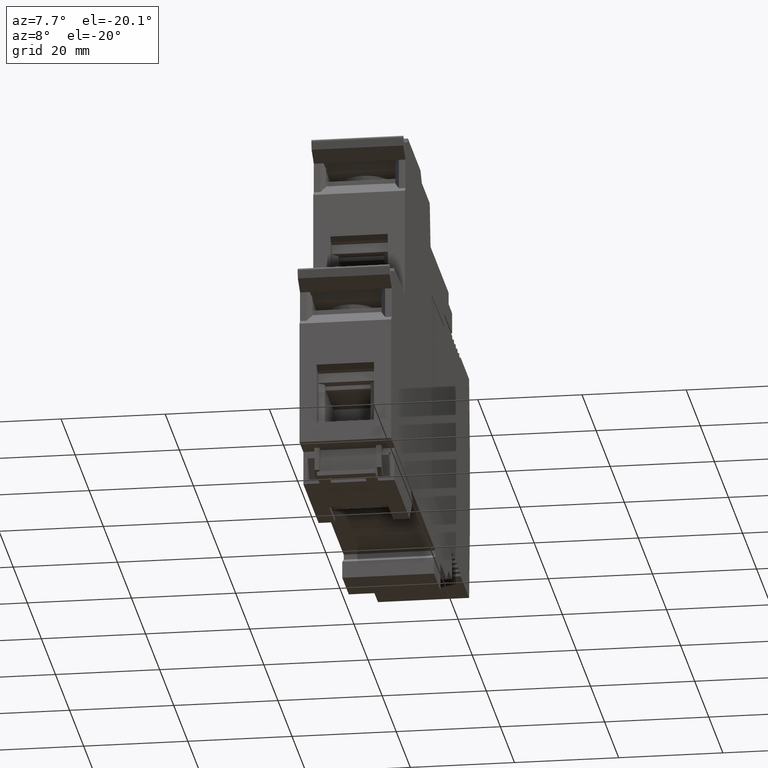
[diagram: clean part render]
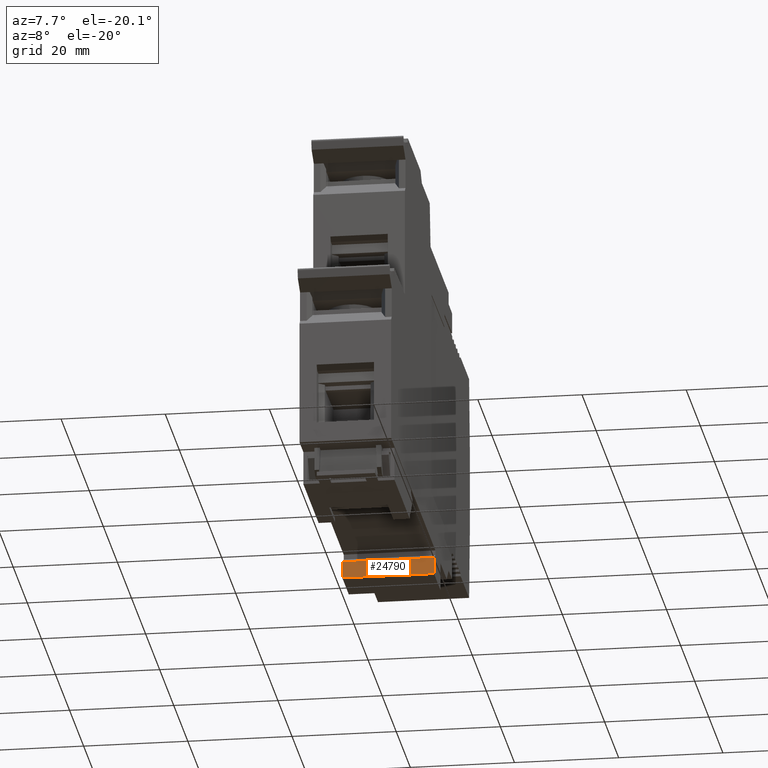
[diagram: same view with one face highlighted and labeled with its STEP entity id]
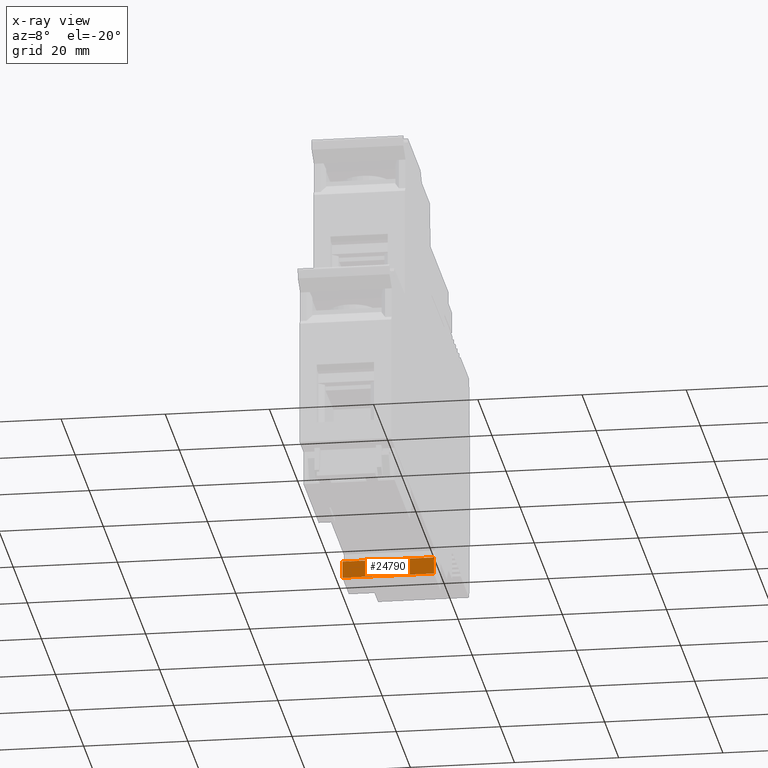
[diagram: x-ray of the same camera — body ghosted, the highlighted face saturated]
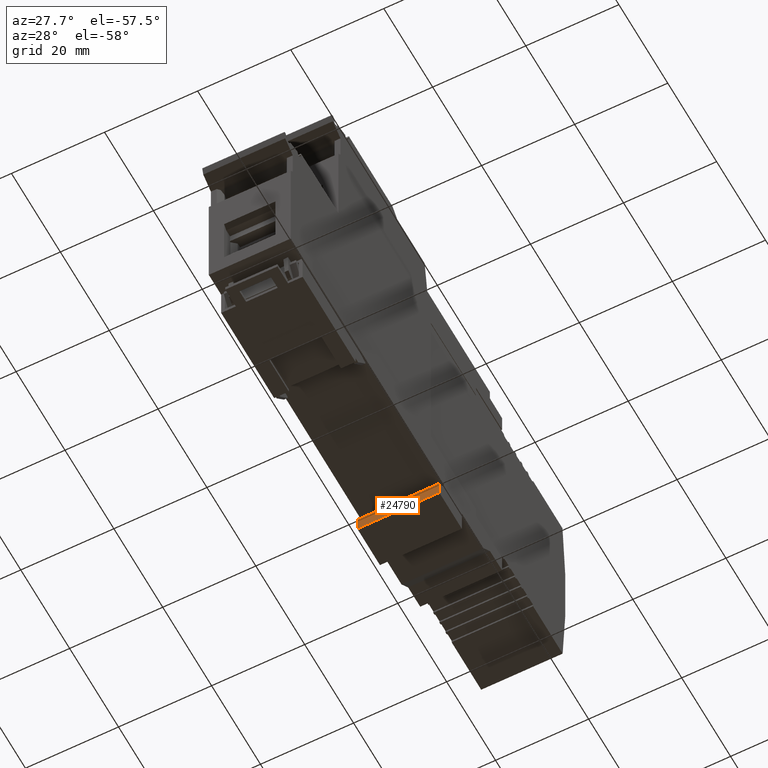
[diagram: same view with one face highlighted and labeled with its STEP entity id]
A machine part, auxiliary view. The second image highlights one B-rep face of the part: STEP entity #24790.
The next image is the same camera in x-ray: the body ghosted, the highlighted face saturated — about 0% of this face is hidden behind the body in this view.
A second angle (auxiliary view) of the same face is appended — the face is thin or edge-on in the first view.
In plain terms, the highlighted planar face has unit normal (-0, 1, 0).
Its self-contained STEP definition (entity closure, byte-faithful):
#7410=CARTESIAN_POINT('',(35.2019096223292,52.1326792958321,
17.5999999999704));
#7420=VERTEX_POINT('',#7410);
#7450=CARTESIAN_POINT('',(-0.00376246123732127,52.1326792957997,
17.5999999999704));
#7460=DIRECTION('',(-1.,-9.21138165743685E-13,-6.24500451351651E-17));
#7470=VECTOR('',#7460,1.);
#7480=LINE('',#7450,#7470);
#7490=CARTESIAN_POINT('',(31.942956062217,52.1326792958291,
17.5999999999704));
#7500=VERTEX_POINT('',#7490);
#7510=EDGE_CURVE('',#7420,#7500,#7480,.T.);
#17820=CARTESIAN_POINT('',(31.942956062217,52.1326792958291,
1.66414744757856E-11));
#17830=VERTEX_POINT('',#17820);
#17860=CARTESIAN_POINT('',(-0.00376246123732038,52.1326792957997,
1.66410569031469E-11));
#17870=DIRECTION('',(-1.,-9.21138165743685E-13,-6.24500451351651E-17));
#17880=VECTOR('',#17870,1.);
#17890=LINE('',#17860,#17880);
#17900=CARTESIAN_POINT('',(35.2019096223292,52.1326792958321,
1.66431442212046E-11));
#17910=VERTEX_POINT('',#17900);
#17920=EDGE_CURVE('',#17910,#17830,#17890,.T.);
#24450=CARTESIAN_POINT('',(35.2019096223292,52.1326792958321,
1.66432554989576E-11));
#24460=DIRECTION('',(-6.24500451351651E-17,9.63867751855049E-31,1.));
#24470=VECTOR('',#24460,1.);
#24480=LINE('',#24450,#24470);
#24490=EDGE_CURVE('',#17910,#7420,#24480,.T.);
#24630=CARTESIAN_POINT('',(31.942956062217,52.1326792958291,
1.66430519771607E-11));
#24640=DIRECTION('',(-9.21138165743685E-13,1.,-5.84889877782713E-29));
#24650=DIRECTION('',(-1.,-9.21138165743685E-13,-6.24500451351651E-17));
#24660=AXIS2_PLACEMENT_3D('',#24630,#24640,#24650);
#24670=PLANE('',#24660);
#24680=ORIENTED_EDGE('',*,*,#17920,.F.);
#24690=CARTESIAN_POINT('',(31.942956062217,52.1326792958291,
1.66430519771607E-11));
#24700=DIRECTION('',(-6.24500451351651E-17,9.63867751855049E-31,1.));
#24710=VECTOR('',#24700,1.);
#24720=LINE('',#24690,#24710);
#24730=EDGE_CURVE('',#17830,#7500,#24720,.T.);
#24740=ORIENTED_EDGE('',*,*,#24730,.F.);
#24750=ORIENTED_EDGE('',*,*,#7510,.T.);
#24760=ORIENTED_EDGE('',*,*,#24490,.T.);
#24770=EDGE_LOOP('',(#24760,#24750,#24740,#24680));
#24780=FACE_OUTER_BOUND('',#24770,.T.);
#24790=ADVANCED_FACE('',(#24780),#24670,.F.);